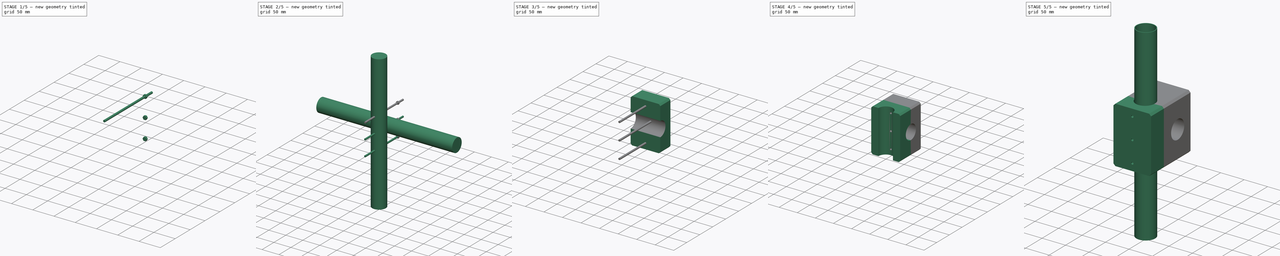
[diagram: build sequence overview — one tinted view per stage of 5, left to right]
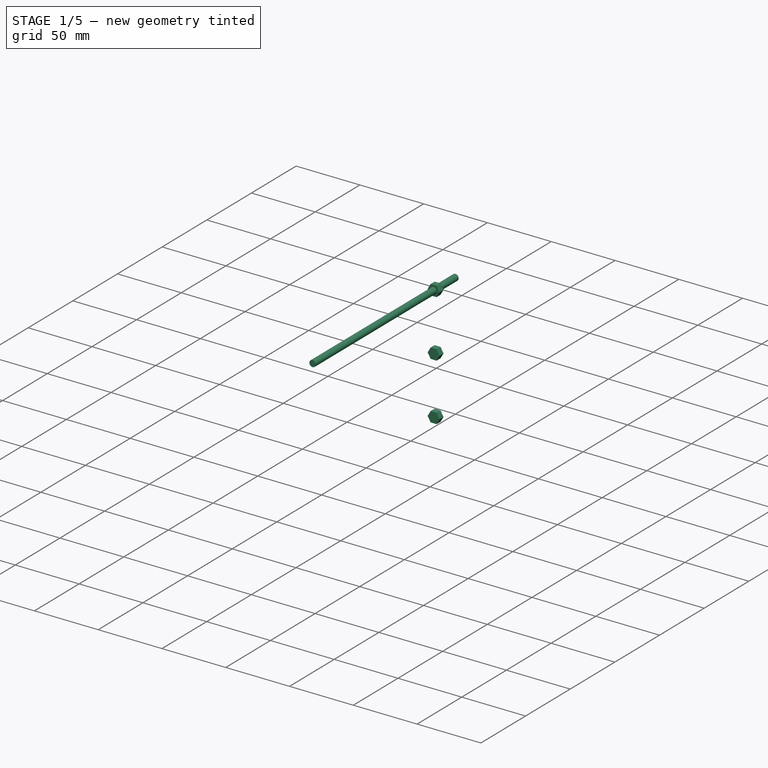
[diagram: stage 1 of 5 — iso view after this stage's code; geometry added in this stage tinted green]
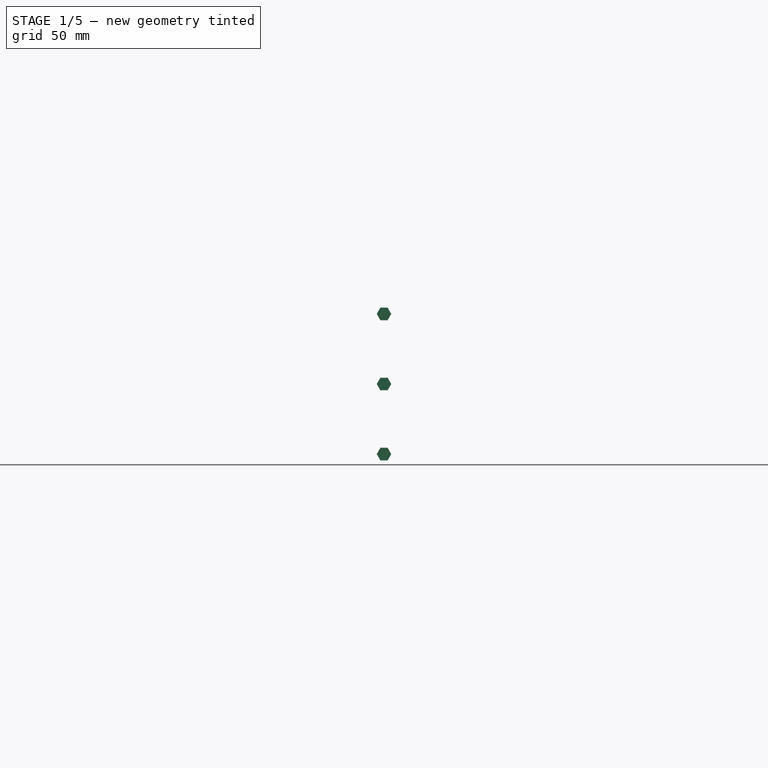
[diagram: stage 1 of 5 — front view after this stage's code; geometry added in this stage tinted green]
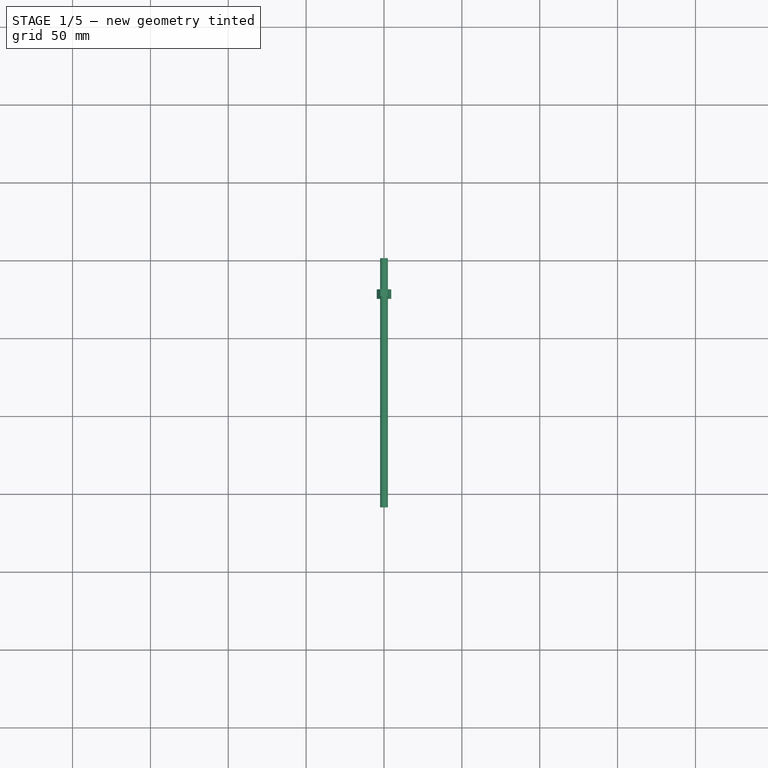
[diagram: stage 1 of 5 — top view after this stage's code; geometry added in this stage tinted green]
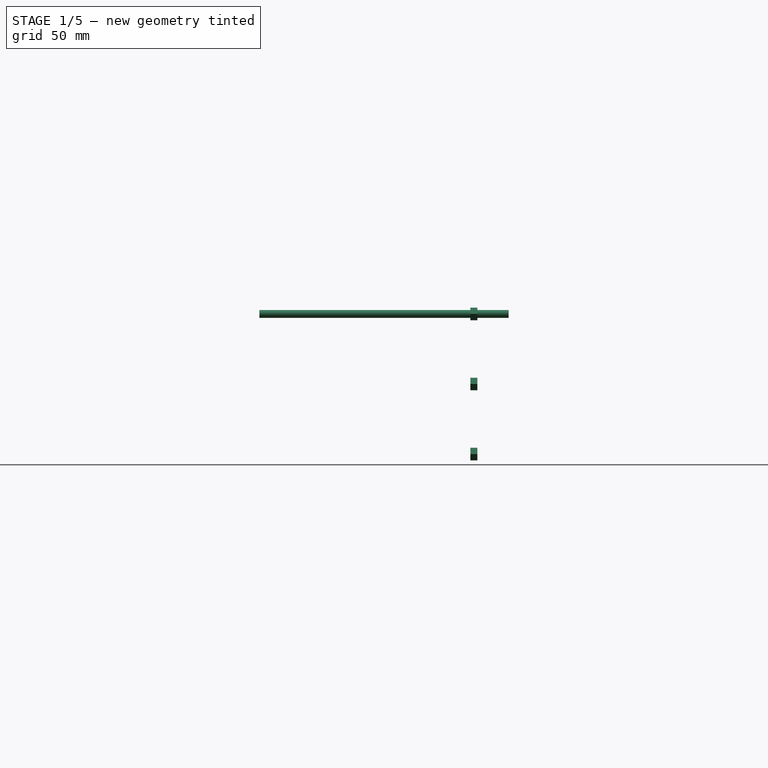
[diagram: stage 1 of 5 — right view after this stage's code; geometry added in this stage tinted green]
FCSTD DOCUMENT  (FreeCAD 0.19R)
Label: tube_keeper
License: All rights reserved
LicenseURL: http://en.wikipedia.org/wiki/All_rights_reserved
objects: Part::Cylinder×5, Part::Cut×5, Part::FeaturePython×4, Part::MultiFuse×3, Part::Chamfer×3, Part::Prism×3, PartDesign::Body×2, Part::RuledSurface×2, Sketcher::SketchObject×1, PartDesign::Pad×1, Part::Box×1, PartDesign::FeatureBase×1, App::DocumentObjectGroup×1
note: 32 computed .brp shape members not serialized (recipe doc carries the construction recipe); baked Part::Feature solids carry a one-line shape summary decoded from their .brp

FEATURE [Part::Cylinder] Cylinder004
  Angle = 360
  AttacherType = Attacher::AttachEngine3D
  Height = 160
  Placement = pos=(0,-60,45) rot=(-1,0,0;1.5708rad)
  Radius = 2.5
FEATURE [Part::Prism] Prism  label="nut001"
  AttacherType = Attacher::AttachEngine3D
  Circumradius = 4.65
  Height = 4.5
  Placement = pos=(0,75.5,1e-15) rot=(-1,0,0;1.5708rad)
  Polygon = 6
FEATURE [Part::Prism] Prism001  label="nut002"
  AttacherType = Attacher::AttachEngine3D
  Circumradius = 4.65
  Height = 4.5
  Placement = pos=(0,75.5,-45) rot=(-1,0,0;1.5708rad)
  Polygon = 6
FEATURE [Part::Prism] Prism002  label="nut003"
  AttacherType = Attacher::AttachEngine3D
  Circumradius = 4.65
  Height = 4.5
  Placement = pos=(0,75.5,45) rot=(-1,0,0;1.5708rad)
  Polygon = 6
FEATURE [Part::MultiFuse] Fusion002  label="nuts"
  Shapes = -> [Prism,Prism001,Prism002]
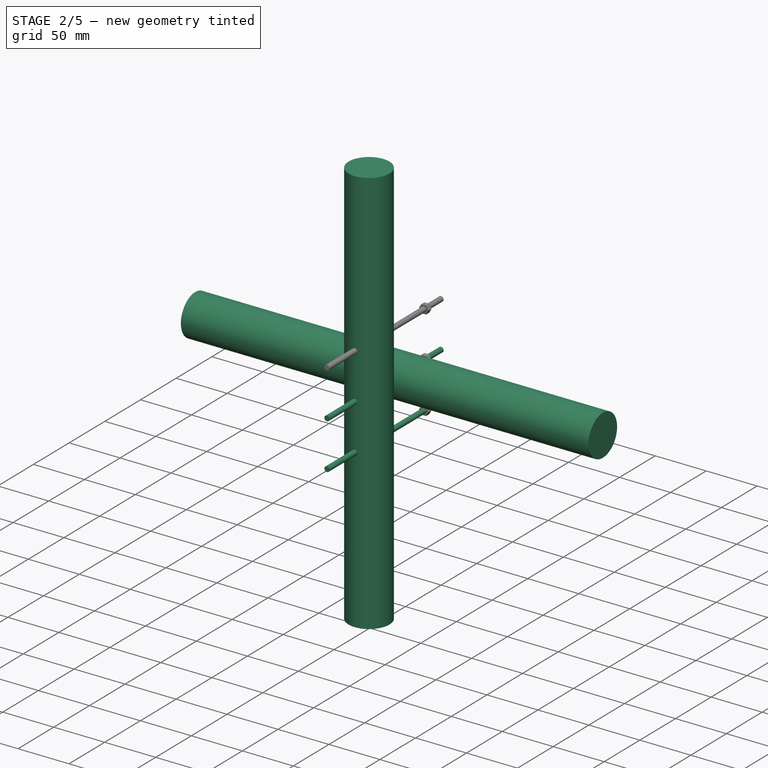
[diagram: stage 2 of 5 — iso view after this stage's code; geometry added in this stage tinted green]
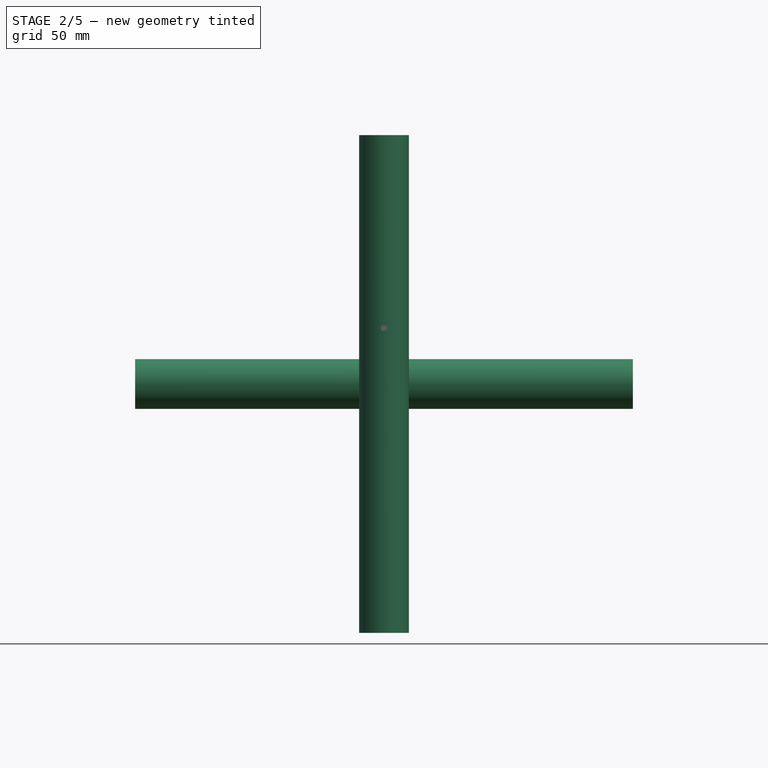
[diagram: stage 2 of 5 — front view after this stage's code; geometry added in this stage tinted green]
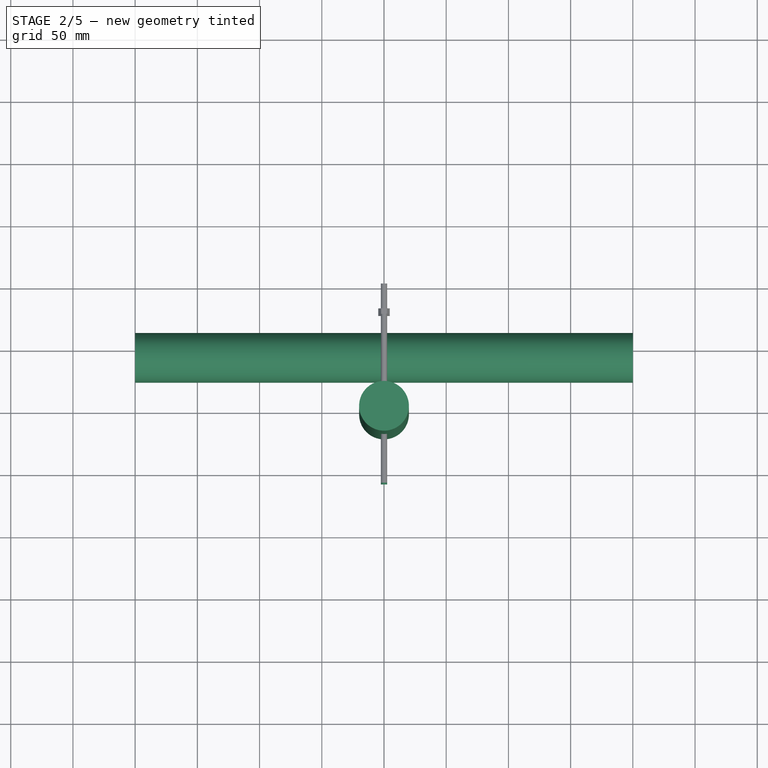
[diagram: stage 2 of 5 — top view after this stage's code; geometry added in this stage tinted green]
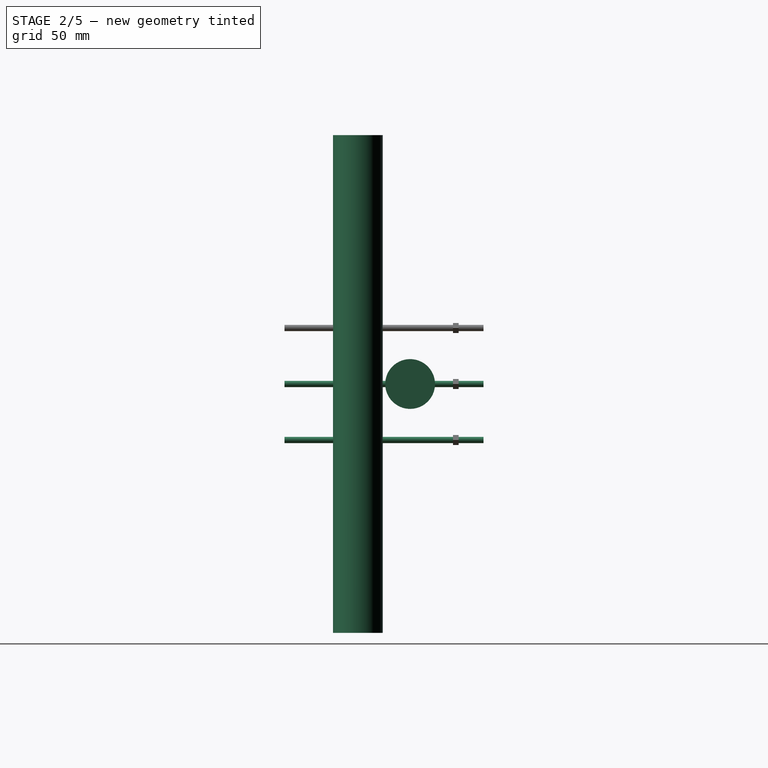
[diagram: stage 2 of 5 — right view after this stage's code; geometry added in this stage tinted green]
FEATURE [Part::Cylinder] Cylinder
  Angle = 360
  AttacherType = Attacher::AttachEngine3D
  Height = 400
  Placement = pos=(0,-1,-200) rot=(0,0,1;0rad)
  Radius = 20
FEATURE [Part::Cylinder] Cylinder001
  Angle = 360
  AttacherType = Attacher::AttachEngine3D
  Height = 400
  Placement = pos=(200,41,4.4e-14) rot=(0,-1,0;1.5708rad)
  Radius = 20
FEATURE [Part::Cylinder] Cylinder002
  Angle = 360
  AttacherType = Attacher::AttachEngine3D
  Height = 160
  Placement = pos=(0,-60,1.3e-14) rot=(-1,0,0;1.5708rad)
  Radius = 2.5
FEATURE [Part::Cylinder] Cylinder003
  Angle = 360
  AttacherType = Attacher::AttachEngine3D
  Height = 160
  Placement = pos=(0,-60,-45) rot=(-1,0,0;1.5708rad)
  Radius = 2.5
FEATURE [Part::MultiFuse] Fusion001  label="rods"
  Shapes = -> [Cylinder004,Cylinder003,Cylinder002]
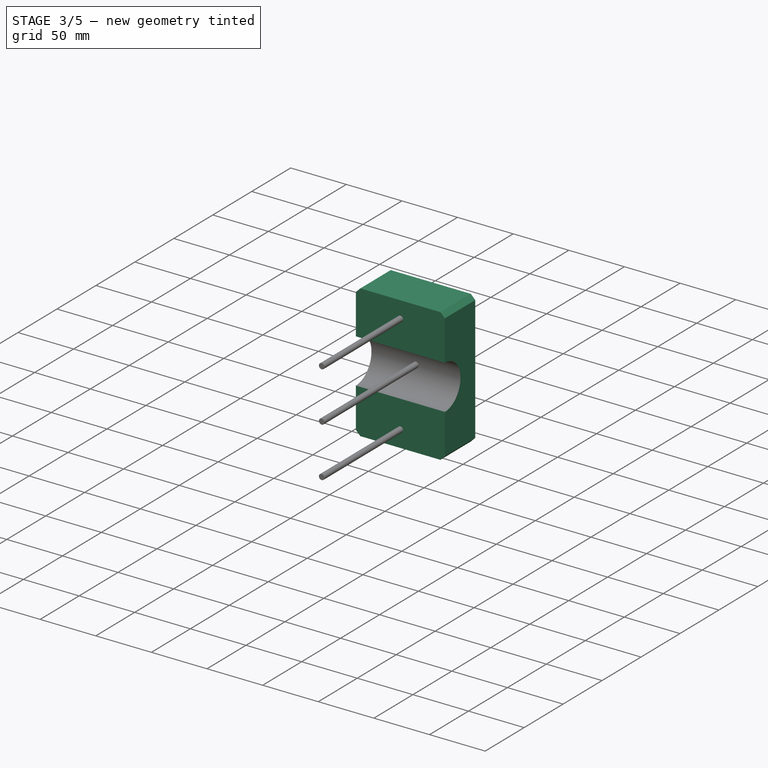
[diagram: stage 3 of 5 — iso view after this stage's code; geometry added in this stage tinted green]
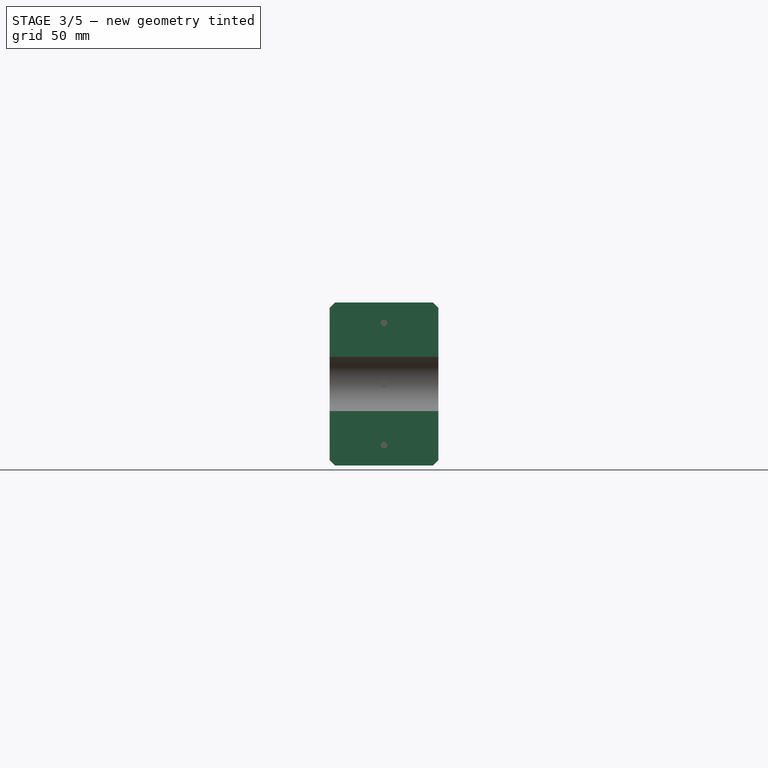
[diagram: stage 3 of 5 — front view after this stage's code; geometry added in this stage tinted green]
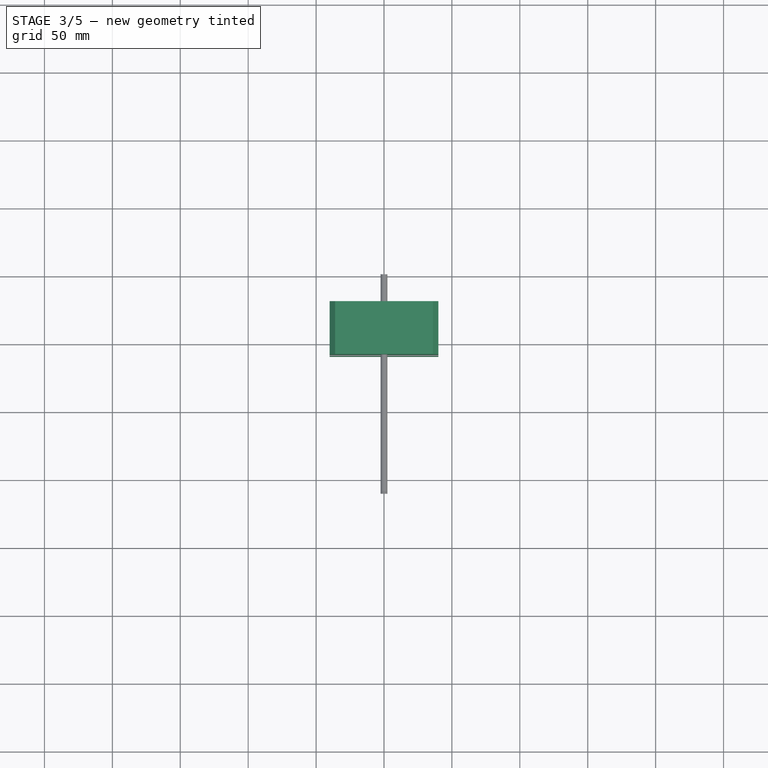
[diagram: stage 3 of 5 — top view after this stage's code; geometry added in this stage tinted green]
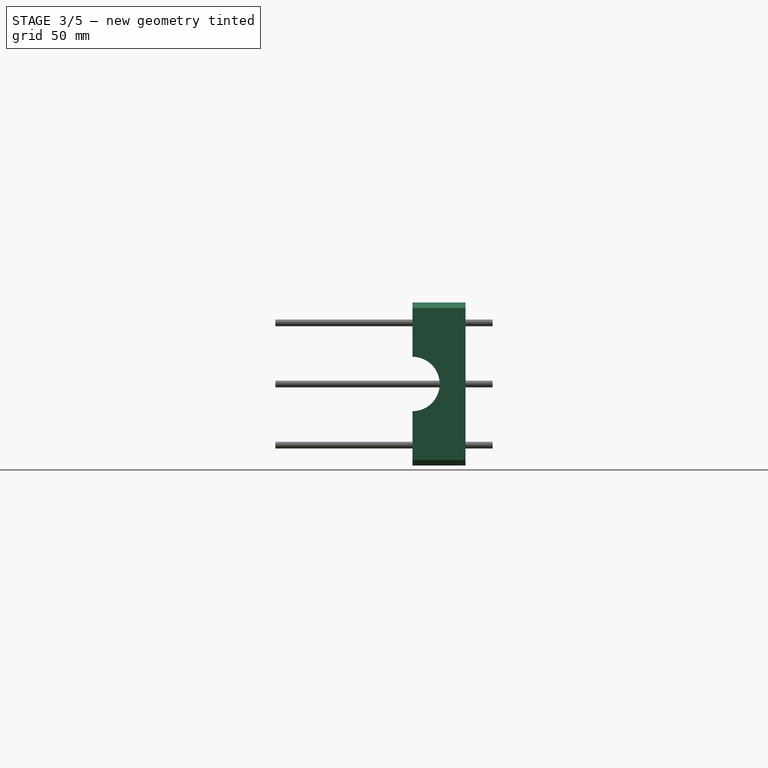
[diagram: stage 3 of 5 — right view after this stage's code; geometry added in this stage tinted green]
FEATURE [PartDesign::Body] Body  label="tube1"
  Group = -> [Sketch,Pad]
  Origin = -> Origin
  Placement = pos=(0,-1,0) rot=(0,0,1;0rad)
  Tip = -> Pad
FEATURE [Part::Box] Box  label="Cube"
  AttacherType = Attacher::AttachEngine3D
  Height = 120
  Length = 80
  Placement = pos=(-40,-40,-60) rot=(0,0,1;0rad)
  Width = 120
FEATURE [Part::MultiFuse] Fusion
  Shapes = -> [Cylinder,Cylinder001]
FEATURE [Part::Cut] Cut
  Base = -> Box
  Tool = -> Fusion
FEATURE [PartDesign::Body] Body001  label="tube2"
  BaseFeature = -> Body
  Group = -> [Clone]
  Origin = -> Origin001
  Placement = pos=(0,40,0) rot=(0,-1,0;1.5708rad)
  Tip = -> Clone
FEATURE [Part::RuledSurface] Ruled_Surface
  Curve1 = -> Cut [Edge1]
  Curve2 = -> Cut [Edge7]
  Orientation = 0
  Placement = pos=(0,39,0) rot=(0,0,1;0rad)
FEATURE [Part::RuledSurface] Ruled_Surface001
  Curve1 = -> Cut [Edge4]
  Curve2 = -> Cut [Edge15]
  Orientation = 0
  Placement = pos=(0,-39,0) rot=(0,0,1;0rad)
FEATURE [Part::FeaturePython] Slice  # WARN: FeaturePython — macro-defined, semantics opaque (R4)
  Base = -> Cut
  Mode = 1
  Tolerance = 0
  Tools = -> [Ruled_Surface001,Ruled_Surface]
FEATURE [Part::FeaturePython] Slice_child2  label="Slice.2"  # WARN: FeaturePython — macro-defined, semantics opaque (R4)
  Base = -> Slice
  FilterType = 1
  Invert = false
  OverrideMaxVal = 0
  WindowFrom = 80
  WindowTo = 100
  items = 2
FEATURE [Part::Chamfer] Chamfer002
  Base = -> Slice_child2
  Edges = 4 edges r=4: [Edge1,Edge3,Edge8,Edge12]
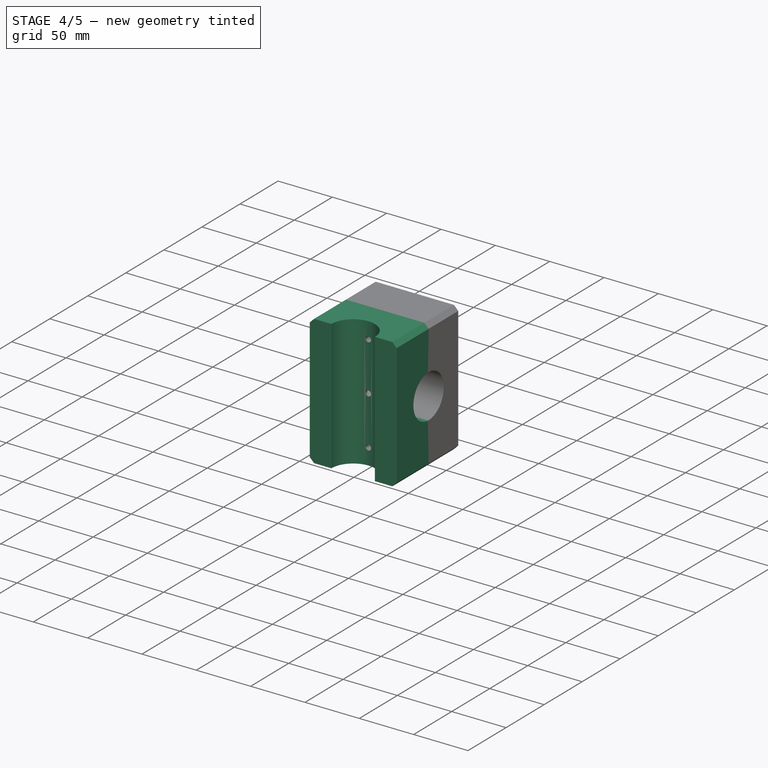
[diagram: stage 4 of 5 — iso view after this stage's code; geometry added in this stage tinted green]
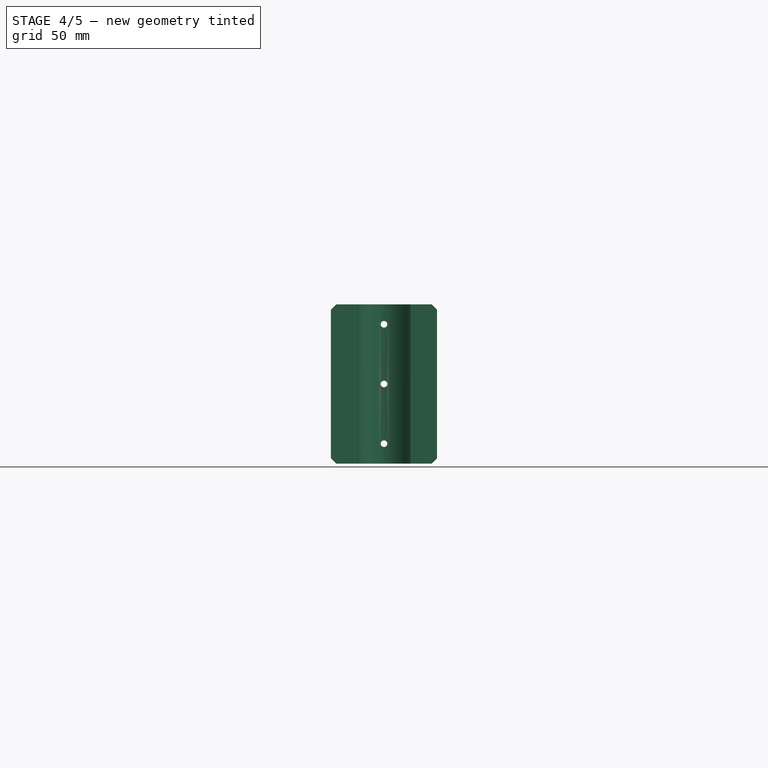
[diagram: stage 4 of 5 — front view after this stage's code; geometry added in this stage tinted green]
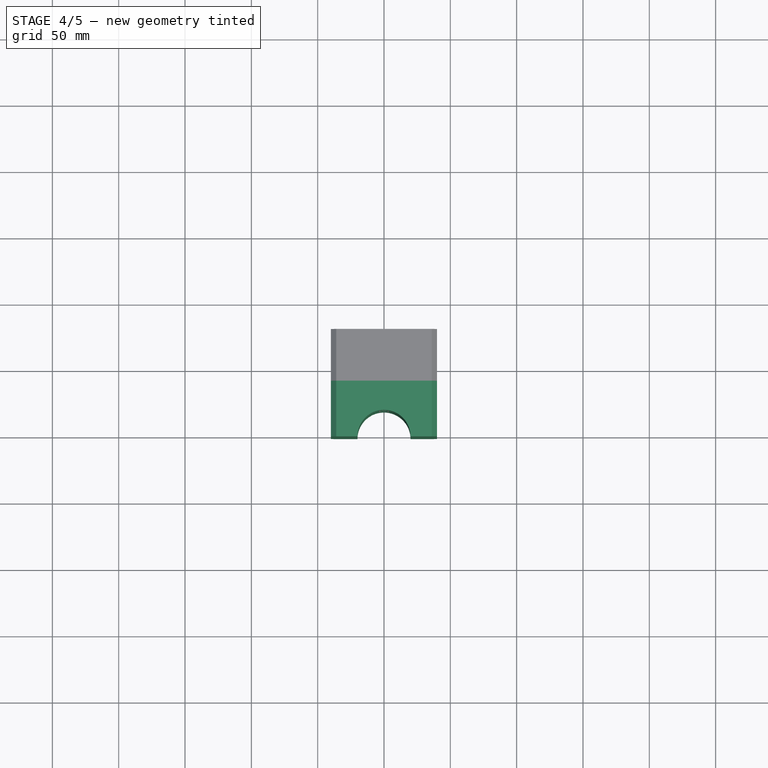
[diagram: stage 4 of 5 — top view after this stage's code; geometry added in this stage tinted green]
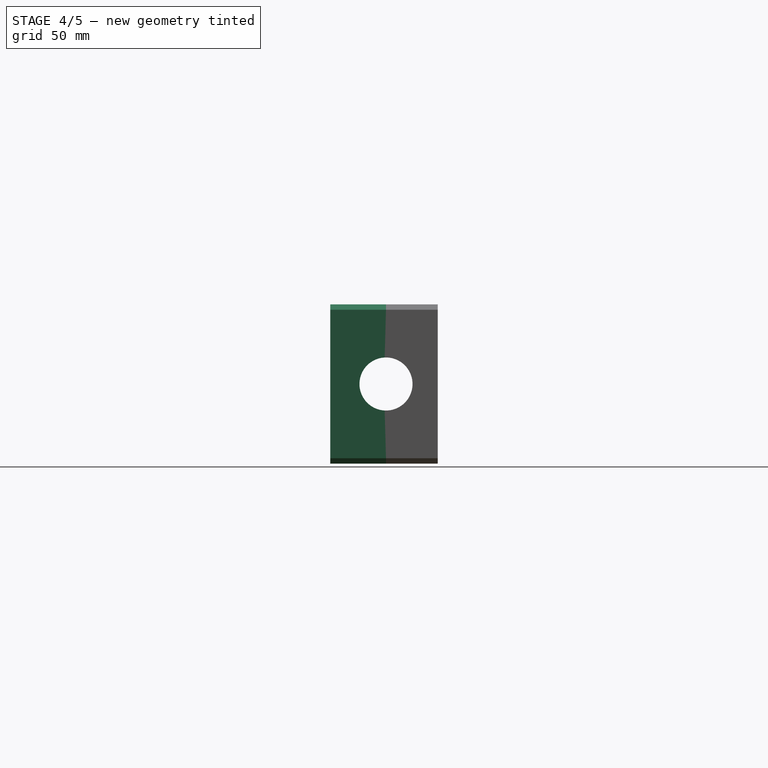
[diagram: stage 4 of 5 — right view after this stage's code; geometry added in this stage tinted green]
FEATURE [Part::FeaturePython] Slice_child1  label="Slice.1"  # WARN: FeaturePython — macro-defined, semantics opaque (R4)
  Base = -> Slice
  FilterType = 1
  Invert = false
  OverrideMaxVal = 0
  WindowFrom = 80
  WindowTo = 100
  items = 1
FEATURE [Part::Chamfer] Chamfer001
  Base = -> Slice_child1
  Edges = 4 edges r=4: [Edge1,Edge5,Edge8,Edge18]
FEATURE [Part::Cut] Cut002
  Base = -> Chamfer002
  Tool = -> Fusion001
FEATURE [Part::Cut] Cut003
  Base = -> Chamfer001
  Tool = -> Fusion001
FEATURE [Part::Cut] Cut004
  Base = -> Cut002
  Tool = -> Fusion002
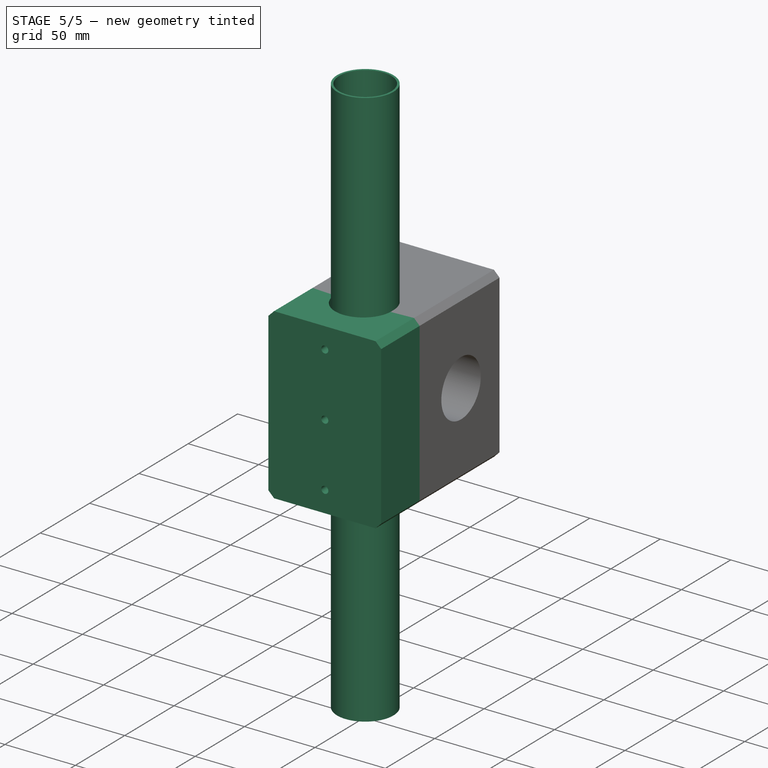
[diagram: stage 5 of 5 — iso view after this stage's code; geometry added in this stage tinted green]
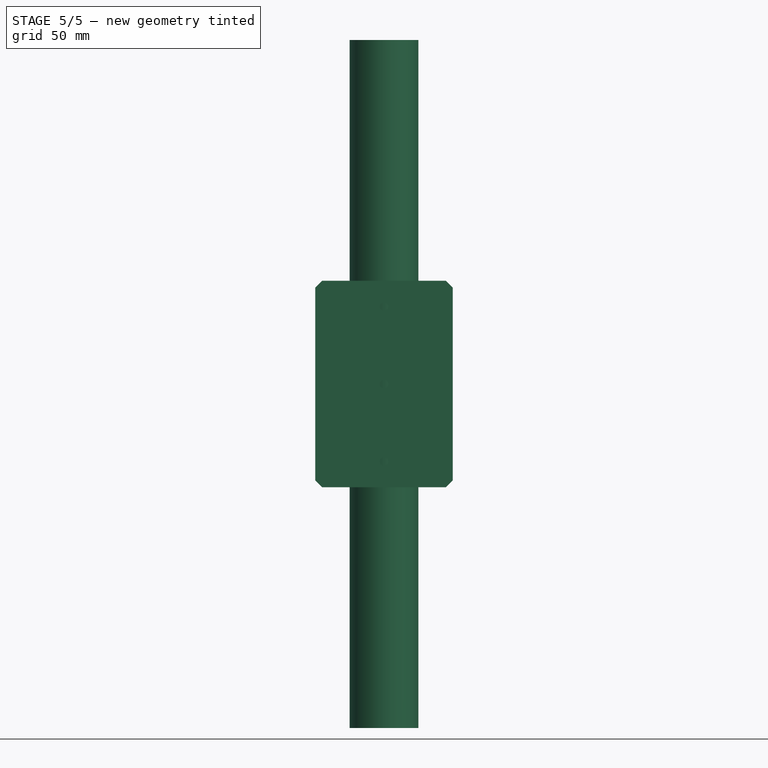
[diagram: stage 5 of 5 — front view after this stage's code; geometry added in this stage tinted green]
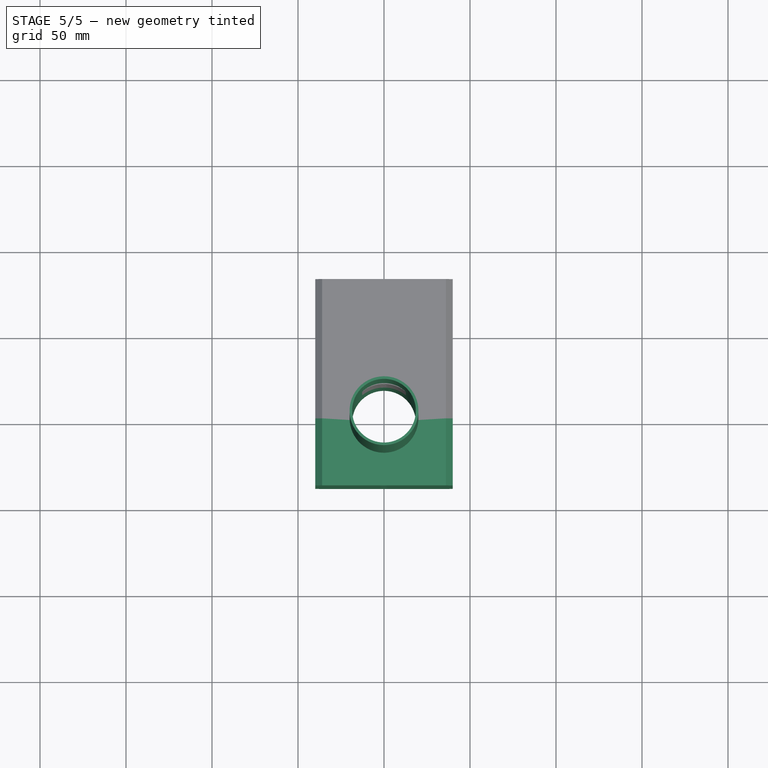
[diagram: stage 5 of 5 — top view after this stage's code; geometry added in this stage tinted green]
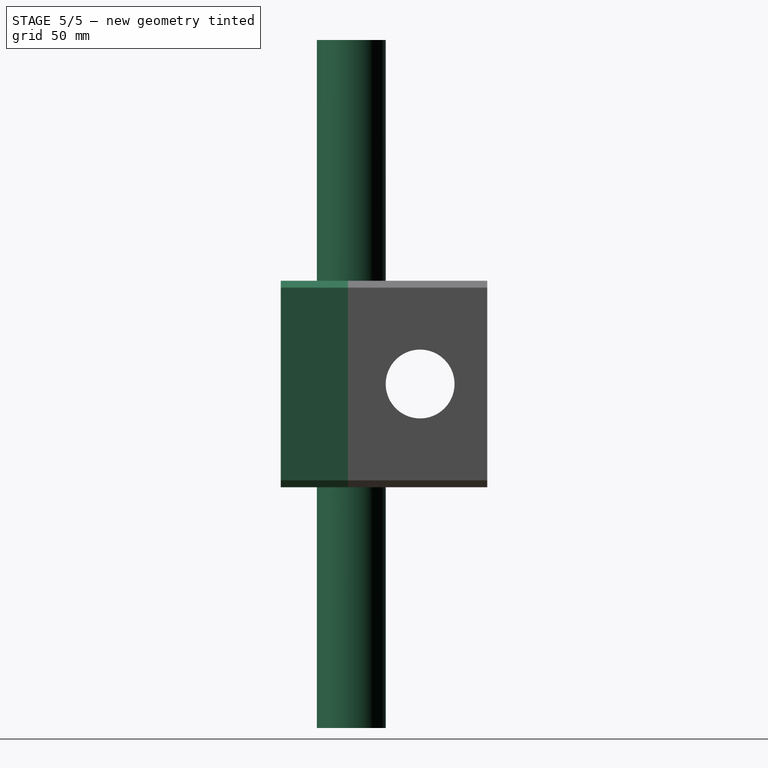
[diagram: stage 5 of 5 — right view after this stage's code; geometry added in this stage tinted green]
FEATURE [Sketcher::SketchObject] Sketch  label="sketch_tube"
  MapMode = 5
  Support = -> [XY_Plane]
  expr: Constraints[3] = .Constraints.tube_diameter - 3mm
  sketch-geometry (2):
    g0: Circle CenterX=0 CenterY=0 CenterZ=0 NormalX=0 NormalY=0 NormalZ=1 AngleXU=0 Radius=20
    g1: Circle CenterX=0 CenterY=0 CenterZ=0 NormalX=0 NormalY=0 NormalZ=1 AngleXU=0 Radius=18.5
  constraints (4):
    c: Coincident(g0,g-1)
    c: Coincident(g1,g0)
    c: Diameter(g0) = 40  'tube_diameter'
    c: Diameter(g1) = 37
FEATURE [PartDesign::Pad] Pad
  Length = 400
  Length2 = 100
  Midplane = true
  Profile = -> Sketch
  Type = 0
FEATURE [PartDesign::FeatureBase] Clone
  BaseFeature = -> Body
  Placement = pos=(0,1,0) rot=(0,0,1;0rad)
FEATURE [Part::FeaturePython] Slice_child0  label="Slice.0"  # WARN: FeaturePython — macro-defined, semantics opaque (R4)
  Base = -> Slice
  FilterType = 1
  Invert = false
  OverrideMaxVal = 0
  WindowFrom = 80
  WindowTo = 100
  items = 0
FEATURE [App::DocumentObjectGroup] GrExplode_Slice  label="Exploded Slice"
  Group = -> [Slice_child0,Slice_child1,Slice_child2]
FEATURE [Part::Chamfer] Chamfer
  Base = -> Slice_child0
  Edges = 4 edges r=4: [Edge1,Edge3,Edge8,Edge14]
FEATURE [Part::Cut] Cut001
  Base = -> Chamfer
  Tool = -> Fusion001
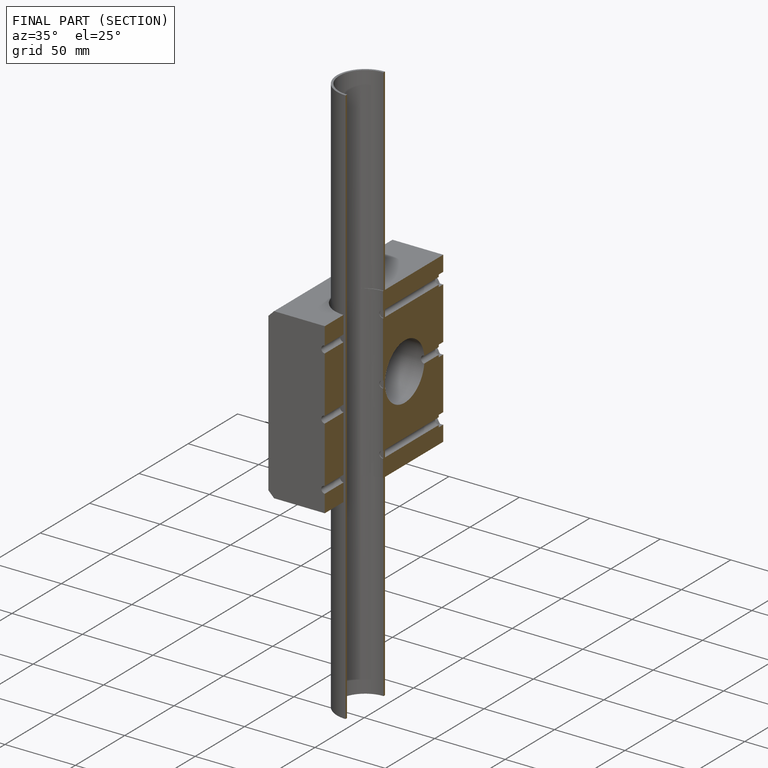
[diagram: finished part — half-section view (interior)]
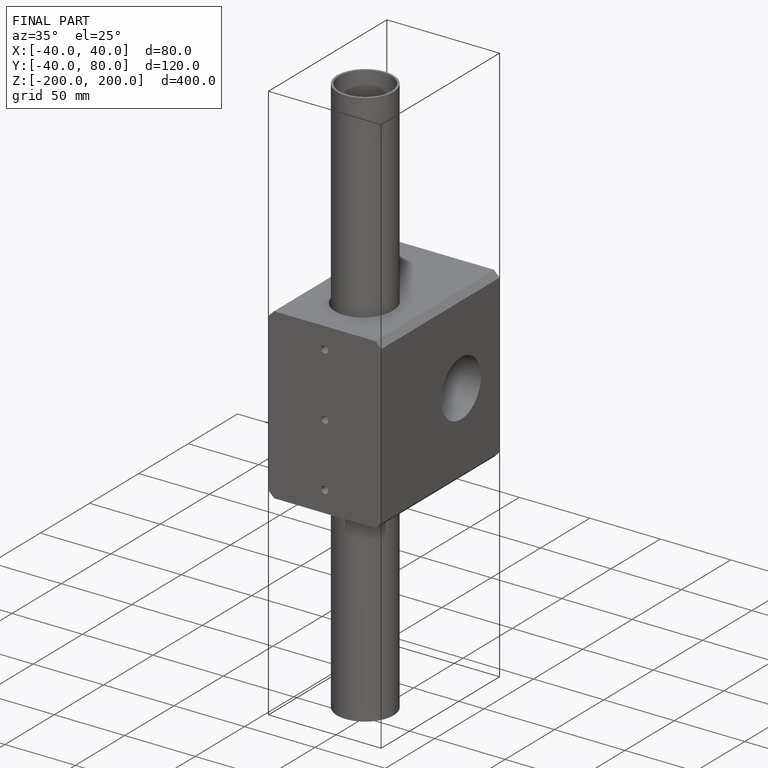
[diagram: finished part — iso view with bounding-box wireframe]
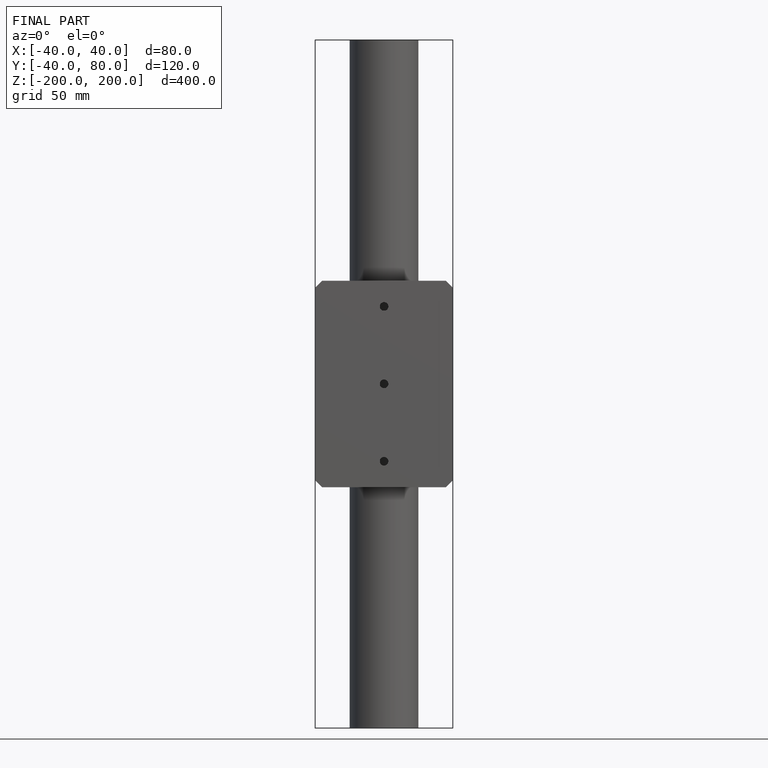
[diagram: finished part — front view with bounding-box wireframe]
